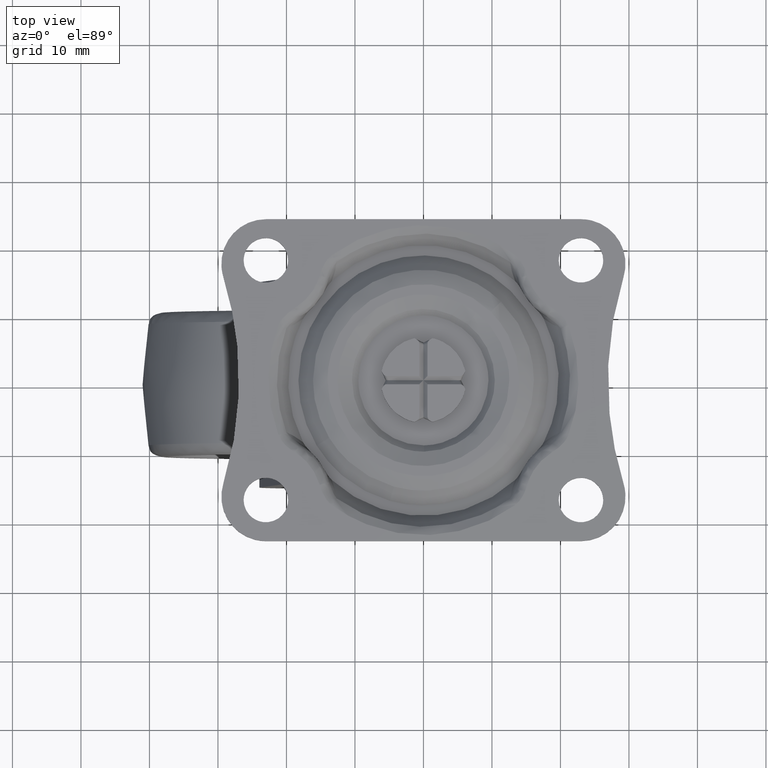
[diagram: clean part render]
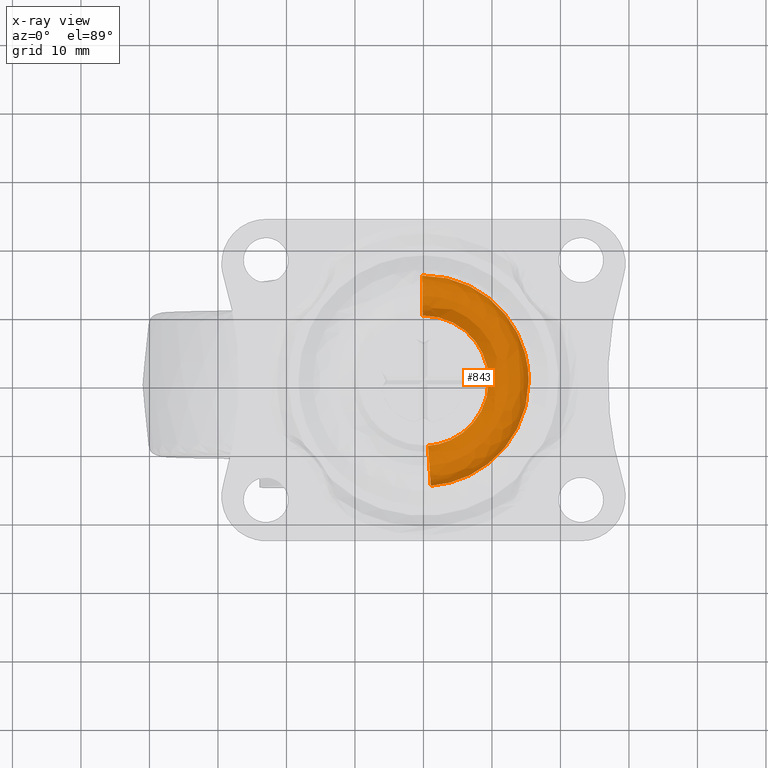
[diagram: x-ray — body ghosted, one internal face saturated and labeled with its STEP entity id]
A machine part, top view, then the same camera in x-ray: the body is ghosted and one INTERNAL B-rep face — a face not visible from any outside direction — is saturated and labeled: STEP entity #843.
In plain terms, the highlighted face is a freeform B-spline surface patch.
Its self-contained STEP definition (entity closure, byte-faithful):
#645=CARTESIAN_POINT('',(0.663921039436295,-9.497690471752916,-6.099995000090347));
#646=VERTEX_POINT('',#645);
#664=CARTESIAN_POINT('',(-0.119639599148893,9.520115640614868,-6.099995000153196));
#665=VERTEX_POINT('',#664);
#679=CARTESIAN_POINT('',(-0.193126818842746,15.367734953417530,-6.099995000035081));
#680=VERTEX_POINT('',#679);
#681=CARTESIAN_POINT('',(-0.193126818842746,15.367734953417525,-6.099995000035081));
#682=CARTESIAN_POINT('',(-0.182512027224113,14.523081140579556,-7.999999999999999));
#683=CARTESIAN_POINT('',(-0.156383208948217,12.443925296990541,-7.999999999999998));
#684=CARTESIAN_POINT('',(-0.130254390674631,10.364769453585350,-7.999999999999998));
#685=CARTESIAN_POINT('',(-0.119639599148893,9.520115640614868,-6.099995000153196));
#693=(BOUNDED_CURVE()B_SPLINE_CURVE(2,(#681,#682,#683,#684,#685),.UNSPECIFIED.,.F.,.U.)B_SPLINE_CURVE_WITH_KNOTS((3,2,3),(-3.680107370235159,-2.0,-0.319892629885618),.UNSPECIFIED.)CURVE()GEOMETRIC_REPRESENTATION_ITEM()RATIONAL_B_SPLINE_CURVE((0.940201626658877,0.813067361429734,1.0,0.813067361443172,0.940201626640599))REPRESENTATION_ITEM(''));
#694=EDGE_CURVE('',#680,#665,#693,.T.);
#711=CARTESIAN_POINT('',(1.071726746753145,-15.331535387810650,-6.099994999980250));
#712=VERTEX_POINT('',#711);
#728=CARTESIAN_POINT('',(1.071726746753145,-15.331535387810652,-6.099994999980250));
#729=CARTESIAN_POINT('',(1.012821638971444,-14.488871204688429,-7.999999999999997));
#730=CARTESIAN_POINT('',(0.867823893047475,-12.414612929760558,-7.999999999999998));
#731=CARTESIAN_POINT('',(0.722826147135455,-10.340354655003635,-7.999999999999997));
#732=CARTESIAN_POINT('',(0.663921039436295,-9.497690471752916,-6.099995000090348));
#740=(BOUNDED_CURVE()B_SPLINE_CURVE(2,(#728,#729,#730,#731,#732),.UNSPECIFIED.,.F.,.U.)B_SPLINE_CURVE_WITH_KNOTS((3,2,3),(-3.680107370291225,-2.0,-0.319892629821354),.UNSPECIFIED.)CURVE()GEOMETRIC_REPRESENTATION_ITEM()RATIONAL_B_SPLINE_CURVE((0.919052543984361,0.794778062228655,0.977505800795127,0.794778062240899,0.919052543967706))REPRESENTATION_ITEM(''));
#741=EDGE_CURVE('',#712,#646,#740,.T.);
#746=CARTESIAN_POINT('',(-0.194706138444553,15.493406600140819,-5.769120805065966));
#747=CARTESIAN_POINT('',(15.298700461696260,15.688112738585376,-5.769120805065967));
#748=CARTESIAN_POINT('',(15.493406600140819,0.194706138444553,-5.769120805065966));
#749=CARTESIAN_POINT('',(15.677278011750735,-14.436545680179819,-5.769120805065966));
#750=CARTESIAN_POINT('',(1.080490931229982,-15.456911007868451,-5.769120805065967));
#751=CARTESIAN_POINT('',(-0.185797893751608,14.784548326724618,-7.999999999999999));
#752=CARTESIAN_POINT('',(14.598750432973015,14.970346220476227,-7.999999999999998));
#753=CARTESIAN_POINT('',(14.784548326724618,0.185797893751609,-7.999999999999999));
#754=CARTESIAN_POINT('',(14.960007206815272,-13.776041175970054,-8.0));
#755=CARTESIAN_POINT('',(1.031056035746985,-14.749722490058181,-7.999999999999999));
#756=CARTESIAN_POINT('',(-0.156383208948217,12.443925296990541,-7.999999999999998));
#757=CARTESIAN_POINT('',(12.287542088042326,12.600308505938759,-7.999999999999999));
#758=CARTESIAN_POINT('',(12.443925296990541,0.156383208948218,-7.999999999999998));
#759=CARTESIAN_POINT('',(12.591606318303514,-11.595080451133091,-7.999999999999999));
#760=CARTESIAN_POINT('',(0.867823893047475,-12.414612929760560,-7.999999999999998));
#761=CARTESIAN_POINT('',(-0.126968524144827,10.103302267256463,-7.999999999999999));
#762=CARTESIAN_POINT('',(9.976333743111637,10.230270791401290,-7.999999999999998));
#763=CARTESIAN_POINT('',(10.103302267256463,0.126968524144827,-7.999999999999999));
#764=CARTESIAN_POINT('',(10.223205429791756,-9.414119726296127,-7.999999999999998));
#765=CARTESIAN_POINT('',(0.704591750347965,-10.079503369462937,-7.999999999999997));
#766=CARTESIAN_POINT('',(-0.118060279451882,9.394443993840266,-5.769120805065965));
#767=CARTESIAN_POINT('',(9.276383714388384,9.512504273292148,-5.769120805065967));
#768=CARTESIAN_POINT('',(9.394443993840266,0.118060279451883,-5.769120805065965));
#769=CARTESIAN_POINT('',(9.505934624856300,-8.753615222086362,-5.769120805065968));
#770=CARTESIAN_POINT('',(0.655156854864968,-9.372314851652670,-5.769120805065968));
#778=(BOUNDED_SURFACE()B_SPLINE_SURFACE(2,2,((#746,#751,#756,#761,#766),(#747,#752,#757,#762,#767),(#748,#753,#758,#763,#768),(#749,#754,#759,#764,#769),(#750,#755,#760,#765,#770)),.UNSPECIFIED.,.F.,.F.,.U.)B_SPLINE_SURFACE_WITH_KNOTS((3,2,3),(3,2,3),(0.0,25.672343544881102,50.317793347966962),(0.0,4.181608094432971,8.363216188865943),.UNSPECIFIED.)GEOMETRIC_REPRESENTATION_ITEM()RATIONAL_B_SPLINE_SURFACE(((0.968737440554792,0.794392792686588,1.0,0.794392792686588,0.968737440554792),(0.685000813405593,0.561720530634406,0.707106781186548,0.561720530634406,0.685000813405593),(0.968737440554792,0.794392792686588,1.0,0.794392792686588,0.968737440554792),(0.696350278491561,0.571027421116493,0.718822509939086,0.571027421116493,0.696350278491561),(0.946946467589733,0.776523562960980,0.977505800795127,0.776523562960980,0.946946467589733)))REPRESENTATION_ITEM('')SURFACE());
#779=CARTESIAN_POINT('',(9.520867368211119,0.0,-6.099995000000001));
#780=VERTEX_POINT('',#779);
#781=CARTESIAN_POINT('',(9.520867368211119,0.0,-6.099995000000001));
#782=CARTESIAN_POINT('',(9.520867368211119,-8.878559638739695,-6.099995000000001));
#783=CARTESIAN_POINT('',(0.663921039436295,-9.497690471752916,-6.099995000090347));
#791=(BOUNDED_CURVE()B_SPLINE_CURVE(2,(#781,#782,#783),.UNSPECIFIED.,.F.,.U.)B_SPLINE_CURVE_WITH_KNOTS((3,3),(0.500000000000000,0.737833686534061),.UNSPECIFIED.)CURVE()GEOMETRIC_REPRESENTATION_ITEM()RATIONAL_B_SPLINE_CURVE((1.0,0.721360504035076,0.972879876384797))REPRESENTATION_ITEM(''));
#792=EDGE_CURVE('',#780,#646,#791,.T.);
#793=ORIENTED_EDGE('',*,*,#792,.T.);
#794=ORIENTED_EDGE('',*,*,#741,.F.);
#795=CARTESIAN_POINT('',(15.368948420992449,0.0,-6.099995000000001));
#796=VERTEX_POINT('',#795);
#797=CARTESIAN_POINT('',(15.368948420992449,0.0,-6.099995000000001));
#798=CARTESIAN_POINT('',(15.368948420992446,-14.332110706200343,-6.099995000000002));
#799=CARTESIAN_POINT('',(1.071726746753144,-15.331535387810655,-6.099994999980250));
#807=(BOUNDED_CURVE()B_SPLINE_CURVE(2,(#797,#798,#799),.UNSPECIFIED.,.F.,.U.)B_SPLINE_CURVE_WITH_KNOTS((3,3),(0.500000000000000,0.737833686533755),.UNSPECIFIED.)CURVE()GEOMETRIC_REPRESENTATION_ITEM()RATIONAL_B_SPLINE_CURVE((1.0,0.721360504035435,0.972879876384149))REPRESENTATION_ITEM(''));
#808=EDGE_CURVE('',#796,#712,#807,.T.);
#809=ORIENTED_EDGE('',*,*,#808,.F.);
#810=CARTESIAN_POINT('',(-0.193126818842746,15.367734953417528,-6.099995000035081));
#811=CARTESIAN_POINT('',(-0.096567221702190,15.368948420992446,-6.099995000000001));
#812=CARTESIAN_POINT('',(0.0,15.368948420992449,-6.099995000000001));
#813=CARTESIAN_POINT('',(15.368948420992448,15.368948420992448,-6.099995000000000));
#814=CARTESIAN_POINT('',(15.368948420992449,0.0,-6.099995000000001));
#822=(BOUNDED_CURVE()B_SPLINE_CURVE(2,(#810,#811,#812,#813,#814),.UNSPECIFIED.,.F.,.U.)B_SPLINE_CURVE_WITH_KNOTS((3,2,3),(0.247784295921281,0.250000000000000,0.500000000000000),.UNSPECIFIED.)CURVE()GEOMETRIC_REPRESENTATION_ITEM()RATIONAL_B_SPLINE_CURVE((0.994854295642982,0.997404141201783,1.0,0.707106781186547,1.0))REPRESENTATION_ITEM(''));
#823=EDGE_CURVE('',#680,#796,#822,.T.);
#824=ORIENTED_EDGE('',*,*,#823,.F.);
#825=ORIENTED_EDGE('',*,*,#694,.T.);
#826=CARTESIAN_POINT('',(-0.119639599148893,9.520115640614868,-6.099995000153196));
#827=CARTESIAN_POINT('',(-0.059822161264703,9.520867368211119,-6.099995000000001));
#828=CARTESIAN_POINT('',(0.0,9.520867368211119,-6.099995000000001));
#829=CARTESIAN_POINT('',(9.520867368211119,9.520867368211119,-6.099995000000000));
#830=CARTESIAN_POINT('',(9.520867368211119,0.0,-6.099995000000001));
#838=(BOUNDED_CURVE()B_SPLINE_CURVE(2,(#826,#827,#828,#829,#830),.UNSPECIFIED.,.F.,.U.)B_SPLINE_CURVE_WITH_KNOTS((3,2,3),(0.247784295918958,0.250000000000000,0.500000000000000),.UNSPECIFIED.)CURVE()GEOMETRIC_REPRESENTATION_ITEM()RATIONAL_B_SPLINE_CURVE((0.994854295637636,0.997404141199062,1.0,0.707106781186547,1.0))REPRESENTATION_ITEM(''));
#839=EDGE_CURVE('',#665,#780,#838,.T.);
#840=ORIENTED_EDGE('',*,*,#839,.T.);
#841=EDGE_LOOP('',(#793,#794,#809,#824,#825,#840));
#842=FACE_OUTER_BOUND('',#841,.T.);
#843=ADVANCED_FACE('',(#842),#778,.F.);